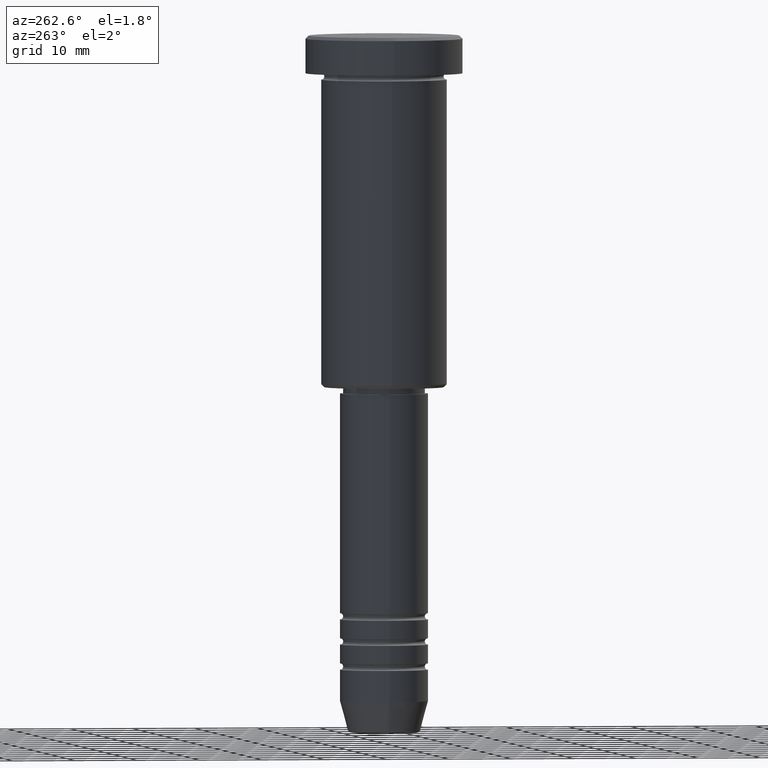
[diagram: clean part render]
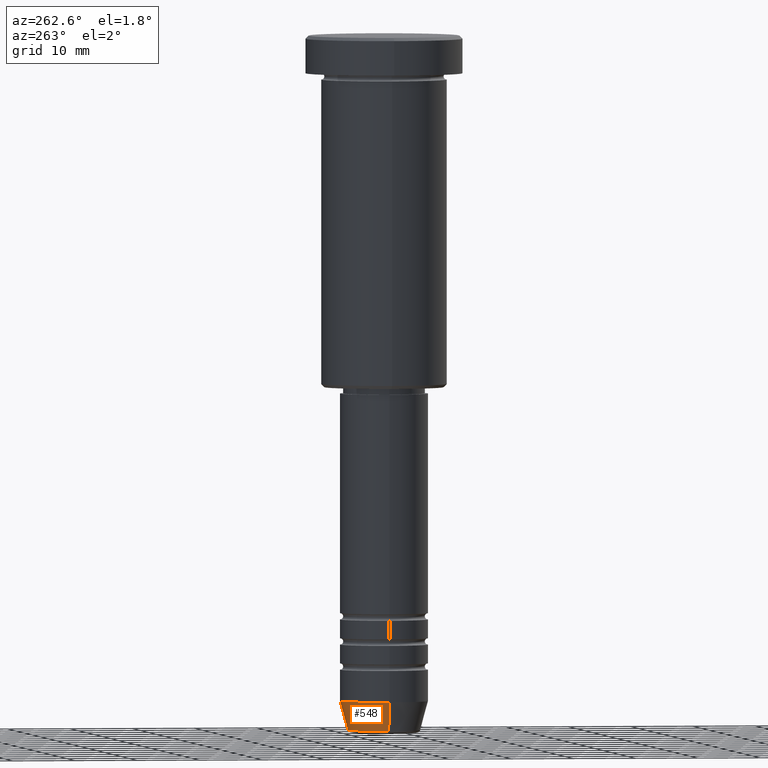
[diagram: same view with one face highlighted and labeled with its STEP entity id]
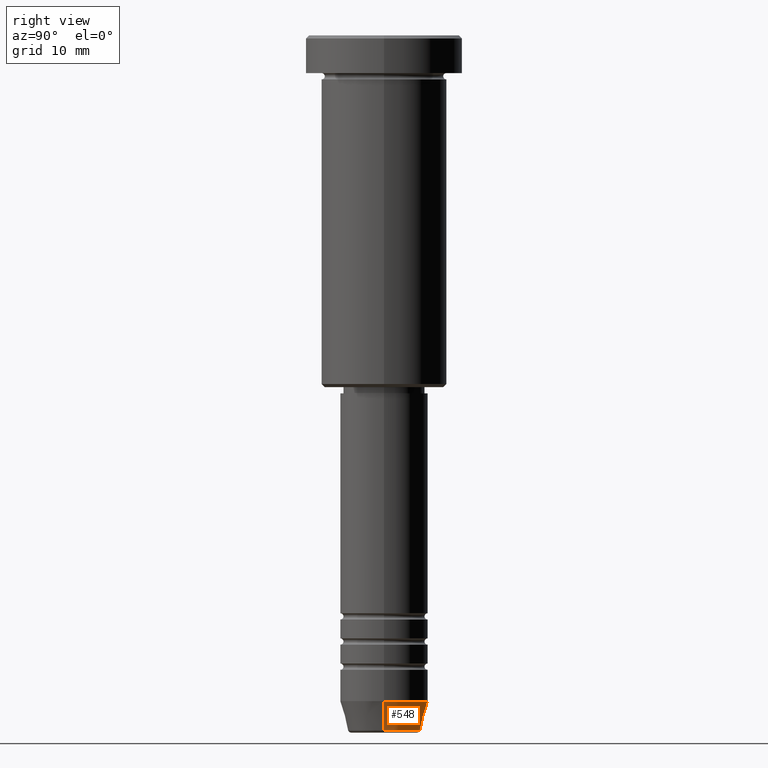
[diagram: same view with one face highlighted and labeled with its STEP entity id]
A machine part, auxiliary view. The second image highlights one B-rep face of the part: STEP entity #548.
A second angle (right view) of the same face is appended — the face is thin or edge-on in the first view.
In plain terms, the highlighted conical surface has half-angle 15 deg.
Its self-contained STEP definition (entity closure, byte-faithful):
#18 = CARTESIAN_POINT ( 'NONE',  ( -7.000000000000000000, 8.572527594031473190E-16, -106.0000000000000142 ) ) ;
#19 = EDGE_CURVE ( 'NONE', #754, #435, #389, .T. ) ;
#26 = VECTOR ( 'NONE', #1017, 1000.000000000000000 ) ;
#77 = CARTESIAN_POINT ( 'NONE',  ( 0.000000000000000000, 0.000000000000000000, -106.0000000000000142 ) ) ;
#95 = ORIENTED_EDGE ( 'NONE', *, *, #284, .F. ) ;
#99 = EDGE_CURVE ( 'NONE', #754, #899, #930, .T. ) ;
#135 = CARTESIAN_POINT ( 'NONE',  ( 0.000000000000000000, 0.000000000000000000, -106.0000000000000142 ) ) ;
#140 = FACE_OUTER_BOUND ( 'NONE', #863, .T. ) ;
#164 = CARTESIAN_POINT ( 'NONE',  ( 5.759553456999433330, 0.000000000000000000, -110.6294095225512848 ) ) ;
#178 = CONICAL_SURFACE ( 'NONE', #391, 7.000000000000000000, 0.2617993877991500740 ) ;
#205 = ORIENTED_EDGE ( 'NONE', *, *, #99, .T. ) ;
#207 = DIRECTION ( 'NONE',  ( 1.000000000000000000, 0.000000000000000000, 0.000000000000000000 ) ) ;
#213 = DIRECTION ( 'NONE',  ( -0.000000000000000000, -0.000000000000000000, 1.000000000000000000 ) ) ;
#284 = EDGE_CURVE ( 'NONE', #435, #1071, #499, .T. ) ;
#318 = VECTOR ( 'NONE', #536, 1000.000000000000000 ) ;
#320 = CARTESIAN_POINT ( 'NONE',  ( 0.000000000000000000, 0.000000000000000000, -110.6294095225512848 ) ) ;
#347 = CARTESIAN_POINT ( 'NONE',  ( -7.000000000000000000, 8.572527594031473190E-16, -106.0000000000000142 ) ) ;
#389 = LINE ( 'NONE', #760, #26 ) ;
#391 = AXIS2_PLACEMENT_3D ( 'NONE', #135, #1072, #605 ) ;
#435 = VERTEX_POINT ( 'NONE', #503 ) ;
#450 = DIRECTION ( 'NONE',  ( -0.000000000000000000, -0.000000000000000000, 1.000000000000000000 ) ) ;
#499 = CIRCLE ( 'NONE', #653, 7.000000000000000000 ) ;
#503 = CARTESIAN_POINT ( 'NONE',  ( 7.000000000000000000, 0.000000000000000000, -106.0000000000000142 ) ) ;
#527 = ORIENTED_EDGE ( 'NONE', *, *, #725, .T. ) ;
#536 = DIRECTION ( 'NONE',  ( -0.2588190451025213501, 3.169619151431772337E-17, 0.9659258262890680902 ) ) ;
#548 = ADVANCED_FACE ( 'NONE', ( #140 ), #178, .T. ) ;
#553 = AXIS2_PLACEMENT_3D ( 'NONE', #320, #213, #207 ) ;
#605 = DIRECTION ( 'NONE',  ( 1.000000000000000000, 0.000000000000000000, 0.000000000000000000 ) ) ;
#645 = ORIENTED_EDGE ( 'NONE', *, *, #19, .F. ) ;
#653 = AXIS2_PLACEMENT_3D ( 'NONE', #77, #450, #1096 ) ;
#708 = CARTESIAN_POINT ( 'NONE',  ( -5.759553456999433330, 7.812973149831950787E-16, -110.6294095225512848 ) ) ;
#725 = EDGE_CURVE ( 'NONE', #899, #1071, #903, .T. ) ;
#754 = VERTEX_POINT ( 'NONE', #164 ) ;
#760 = CARTESIAN_POINT ( 'NONE',  ( 7.000000000000000000, 0.000000000000000000, -106.0000000000000142 ) ) ;
#863 = EDGE_LOOP ( 'NONE', ( #205, #527, #95, #645 ) ) ;
#899 = VERTEX_POINT ( 'NONE', #708 ) ;
#903 = LINE ( 'NONE', #347, #318 ) ;
#930 = CIRCLE ( 'NONE', #553, 5.759553456999433330 ) ;
#1017 = DIRECTION ( 'NONE',  ( 0.2588190451025213501, 0.000000000000000000, 0.9659258262890680902 ) ) ;
#1071 = VERTEX_POINT ( 'NONE', #18 ) ;
#1072 = DIRECTION ( 'NONE',  ( -0.000000000000000000, -0.000000000000000000, 1.000000000000000000 ) ) ;
#1096 = DIRECTION ( 'NONE',  ( 1.000000000000000000, 0.000000000000000000, 0.000000000000000000 ) ) ;